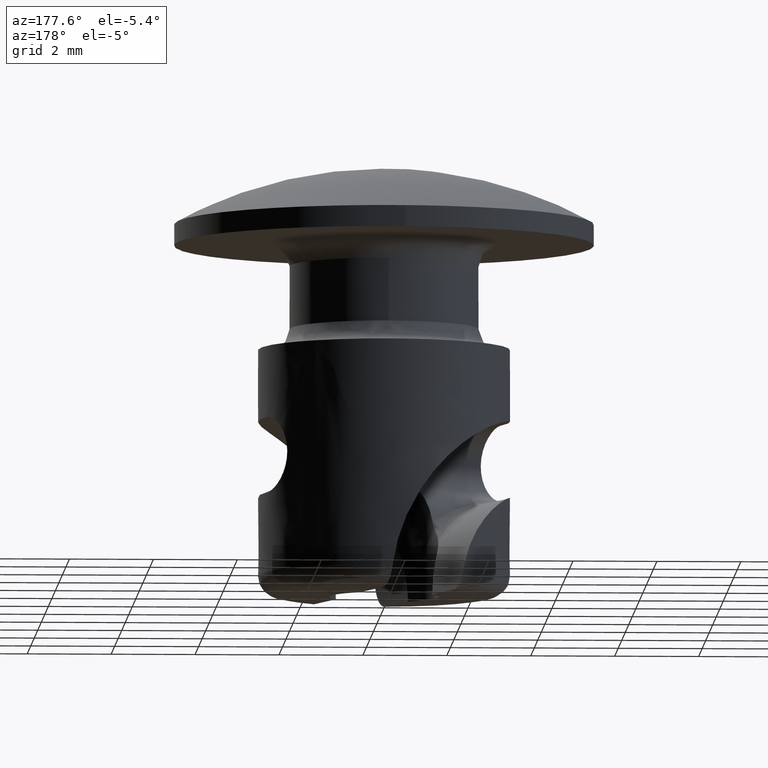
[diagram: clean part render]
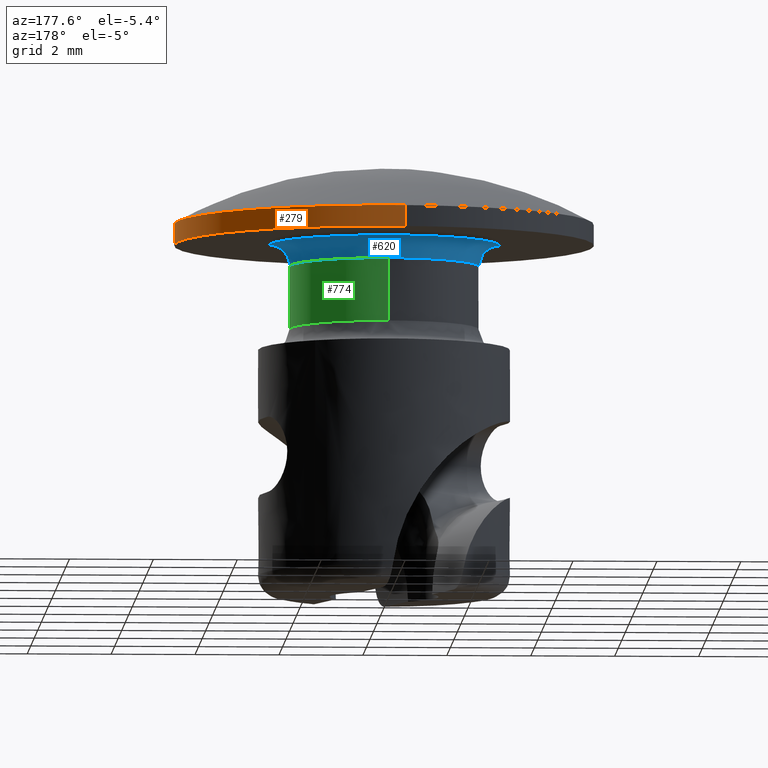
[diagram: same view with three faces highlighted in distinct colors, each labeled with its STEP entity id]
A machine part, auxiliary view with three faces highlighted in distinct colors.
Their STEP definitions:

[orange] entity #279 — the highlighted face is a freeform B-spline surface patch.
#140=CARTESIAN_POINT('',(0.305240933789139,-4.990674099992546,0.499999999999986));
#141=VERTEX_POINT('',#140);
#159=CARTESIAN_POINT('',(5.0,0.0,0.499999999999986));
#160=VERTEX_POINT('',#159);
#161=CARTESIAN_POINT('',(5.0,0.0,0.499999999999986));
#162=CARTESIAN_POINT('',(4.999999999999992,-4.703532000033230,0.499999999999986));
#163=CARTESIAN_POINT('',(0.305240933789139,-4.990674099992546,0.499999999999986));
#171=(BOUNDED_CURVE()B_SPLINE_CURVE(2,(#161,#162,#163),.UNSPECIFIED.,.F.,.U.)B_SPLINE_CURVE_WITH_KNOTS((3,3),(0.500000000000000,0.739333023226263),.UNSPECIFIED.)CURVE()GEOMETRIC_REPRESENTATION_ITEM()RATIONAL_B_SPLINE_CURVE((1.0,0.719603921835620,0.976072172374189))REPRESENTATION_ITEM(''));
#172=EDGE_CURVE('',#160,#141,#171,.T.);
#174=CARTESIAN_POINT('',(-0.305240933789139,4.990674099992546,0.499999999999986));
#175=VERTEX_POINT('',#174);
#176=CARTESIAN_POINT('',(-0.305240933789139,4.990674099992546,0.499999999999986));
#177=CARTESIAN_POINT('',(-0.152762932077495,4.999999999999692,0.499999999999986));
#178=CARTESIAN_POINT('',(1.885290E-014,4.999999999999697,0.499999999999986));
#179=CARTESIAN_POINT('',(5.000000000000009,4.999999999999853,0.499999999999986));
#180=CARTESIAN_POINT('',(5.0,0.0,0.499999999999986));
#188=(BOUNDED_CURVE()B_SPLINE_CURVE(2,(#176,#177,#178,#179,#180),.UNSPECIFIED.,.F.,.U.)B_SPLINE_CURVE_WITH_KNOTS((3,2,3),(0.239333023226263,0.250000000000000,0.500000000000000),.UNSPECIFIED.)CURVE()GEOMETRIC_REPRESENTATION_ITEM()RATIONAL_B_SPLINE_CURVE((0.976072172374189,0.987502859350927,1.0,0.707106781186548,1.0))REPRESENTATION_ITEM(''));
#189=EDGE_CURVE('',#175,#160,#188,.T.);
#213=CARTESIAN_POINT('',(-0.305242697674285,4.990673992109334,0.512499999999986));
#214=CARTESIAN_POINT('',(4.685431294435048,5.295916689783620,0.512499999999986));
#215=CARTESIAN_POINT('',(4.990673992109334,0.305242697674285,0.512499999999986));
#216=CARTESIAN_POINT('',(5.295916689783620,-4.685431294435048,0.512499999999986));
#217=CARTESIAN_POINT('',(0.305242697674285,-4.990673992109334,0.512499999999986));
#218=CARTESIAN_POINT('',(-0.305242697674285,4.990673992109334,-0.012812500000000));
#219=CARTESIAN_POINT('',(4.685431294435048,5.295916689783620,-0.012812500000000));
#220=CARTESIAN_POINT('',(4.990673992109334,0.305242697674285,-0.012812500000000));
#221=CARTESIAN_POINT('',(5.295916689783620,-4.685431294435048,-0.012812500000000));
#222=CARTESIAN_POINT('',(0.305242697674285,-4.990673992109334,-0.012812500000000));
#230=(BOUNDED_SURFACE()B_SPLINE_SURFACE(2,1,((#213,#218),(#214,#219),(#215,#220),(#216,#221),(#217,#222)),.UNSPECIFIED.,.F.,.F.,.U.)B_SPLINE_SURFACE_WITH_KNOTS((3,2,3),(2,2),(0.0,8.284271247461899,16.568542494923800),(0.0,1.0),.UNSPECIFIED.)GEOMETRIC_REPRESENTATION_ITEM()RATIONAL_B_SPLINE_SURFACE(((1.0,1.0),(0.707106781186548,0.707106781186548),(1.0,1.0),(0.707106781186548,0.707106781186548),(1.0,1.0)))REPRESENTATION_ITEM('')SURFACE());
#231=CARTESIAN_POINT('',(-0.305240911770624,4.990674101339240,3.206897E-014));
#232=VERTEX_POINT('',#231);
#233=CARTESIAN_POINT('',(5.0,0.0,0.0));
#234=VERTEX_POINT('',#233);
#235=CARTESIAN_POINT('',(-0.305240911770624,4.990674101339240,3.206897E-014));
#236=CARTESIAN_POINT('',(-0.152762921037370,4.999999999999686,3.160812E-014));
#237=CARTESIAN_POINT('',(1.852971E-014,4.999999999999690,3.111822E-014));
#238=CARTESIAN_POINT('',(5.000000000000009,4.999999999999851,1.508374E-014));
#239=CARTESIAN_POINT('',(5.0,0.0,0.0));
#247=(BOUNDED_CURVE()B_SPLINE_CURVE(2,(#235,#236,#237,#238,#239),.UNSPECIFIED.,.F.,.U.)B_SPLINE_CURVE_WITH_KNOTS((3,2,3),(0.239333023987528,0.250000000000000,0.500000000000000),.UNSPECIFIED.)CURVE()GEOMETRIC_REPRESENTATION_ITEM()RATIONAL_B_SPLINE_CURVE((0.976072174005725,0.987502860242805,1.0,0.707106781186548,1.0))REPRESENTATION_ITEM(''));
#248=EDGE_CURVE('',#232,#234,#247,.T.);
#249=ORIENTED_EDGE('',*,*,#248,.F.);
#250=CARTESIAN_POINT('',(-0.305240933789139,4.990674099992546,0.499999999999986));
#251=CARTESIAN_POINT('',(-0.305240911770624,4.990674101339240,3.206897E-014));
#252=QUASI_UNIFORM_CURVE('',1,(#250,#251),.UNSPECIFIED.,.F.,.U.);
#253=EDGE_CURVE('',#175,#232,#252,.T.);
#254=ORIENTED_EDGE('',*,*,#253,.F.);
#255=ORIENTED_EDGE('',*,*,#189,.T.);
#256=ORIENTED_EDGE('',*,*,#172,.T.);
#257=CARTESIAN_POINT('',(0.305240911770624,-4.990674101339240,3.206897E-014));
#258=VERTEX_POINT('',#257);
#259=CARTESIAN_POINT('',(0.305240933789139,-4.990674099992546,0.499999999999986));
#260=CARTESIAN_POINT('',(0.305240911770624,-4.990674101339240,3.206897E-014));
#261=QUASI_UNIFORM_CURVE('',1,(#259,#260),.UNSPECIFIED.,.F.,.U.);
#262=EDGE_CURVE('',#141,#258,#261,.T.);
#263=ORIENTED_EDGE('',*,*,#262,.T.);
#264=CARTESIAN_POINT('',(5.0,0.0,0.0));
#265=CARTESIAN_POINT('',(4.999999999999989,-4.703532020823662,1.603448E-014));
#266=CARTESIAN_POINT('',(0.305240911770624,-4.990674101339240,3.206897E-014));
#274=(BOUNDED_CURVE()B_SPLINE_CURVE(2,(#264,#265,#266),.UNSPECIFIED.,.F.,.U.)B_SPLINE_CURVE_WITH_KNOTS((3,3),(0.500000000000000,0.739333023987528),.UNSPECIFIED.)CURVE()GEOMETRIC_REPRESENTATION_ITEM()RATIONAL_B_SPLINE_CURVE((1.0,0.719603920943743,0.976072174005725))REPRESENTATION_ITEM(''));
#275=EDGE_CURVE('',#234,#258,#274,.T.);
#276=ORIENTED_EDGE('',*,*,#275,.F.);
#277=EDGE_LOOP('',(#249,#254,#255,#256,#263,#276));
#278=FACE_OUTER_BOUND('',#277,.T.);
#279=ADVANCED_FACE('',(#278),#230,.T.);

[blue] entity #620 — the highlighted face is a freeform B-spline surface patch.
#346=CARTESIAN_POINT('',(-2.750000000000000,0.0,5.496905E-014));
#347=VERTEX_POINT('',#346);
#348=CARTESIAN_POINT('',(-2.749782871351383,-0.034556609716116,5.452264E-014));
#349=VERTEX_POINT('',#348);
#350=CARTESIAN_POINT('',(-2.750000000000000,0.0,5.496905E-014));
#351=CARTESIAN_POINT('',(-2.749999999895693,-0.017278986996147,5.474583E-014));
#352=CARTESIAN_POINT('',(-2.749782871351383,-0.034556609716116,5.452264E-014));
#360=(BOUNDED_CURVE()B_SPLINE_CURVE(2,(#350,#351,#352),.UNSPECIFIED.,.F.,.U.)B_SPLINE_CURVE_WITH_KNOTS((3,3),(0.0,0.002215704080799),.UNSPECIFIED.)CURVE()GEOMETRIC_REPRESENTATION_ITEM()RATIONAL_B_SPLINE_CURVE((1.0,0.997404141199346,0.994854295638195))REPRESENTATION_ITEM(''));
#361=EDGE_CURVE('',#347,#349,#360,.T.);
#395=CARTESIAN_POINT('',(2.749782871351383,0.034556609716116,2.739134E-014));
#396=VERTEX_POINT('',#395);
#410=CARTESIAN_POINT('',(2.749782871351383,0.034556609716116,2.739134E-014));
#411=CARTESIAN_POINT('',(2.748236250449938,0.157790460235091,2.739521E-014));
#412=CARTESIAN_POINT('',(2.725865798738335,0.437635688325371,2.749856E-014));
#413=CARTESIAN_POINT('',(2.628674109826503,0.847979279634265,2.797297E-014));
#414=CARTESIAN_POINT('',(2.473175525276432,1.221431415602067,2.874089E-014));
#415=CARTESIAN_POINT('',(2.269282140503147,1.570246757333329,2.975225E-014));
#416=CARTESIAN_POINT('',(2.031080845913218,1.869314738794473,3.093720E-014));
#417=CARTESIAN_POINT('',(1.743142955307315,2.136723572665746,3.237253E-014));
#418=CARTESIAN_POINT('',(1.464469972253523,2.335726663549650,3.376356E-014));
#419=CARTESIAN_POINT('',(1.203165856542957,2.477764409657906,3.506930E-014));
#420=CARTESIAN_POINT('',(0.929490274111744,2.593513237947130,3.643790E-014));
#421=CARTESIAN_POINT('',(0.655664289719096,2.677087208554339,3.780827E-014));
#422=CARTESIAN_POINT('',(0.335566822399127,2.735372369005177,3.941144E-014));
#423=CARTESIAN_POINT('',(0.044373066648671,2.754925473139783,4.087091E-014));
#424=CARTESIAN_POINT('',(-0.280627498258958,2.741954632945511,4.250091E-014));
#425=CARTESIAN_POINT('',(-0.607941997727665,2.690476047972071,4.414373E-014));
#426=CARTESIAN_POINT('',(-0.919894667448823,2.597222137012148,4.571084E-014));
#427=CARTESIAN_POINT('',(-1.204259042195668,2.477862061131468,4.714044E-014));
#428=CARTESIAN_POINT('',(-1.494660844532349,2.318730212542890,4.860157E-014));
#429=CARTESIAN_POINT('',(-1.765292613343123,2.117732923009455,4.996488E-014));
#430=CARTESIAN_POINT('',(-2.004877617933788,1.889532017418787,5.117338E-014));
#431=CARTESIAN_POINT('',(-2.234222197280339,1.620488367966624,5.233182E-014));
#432=CARTESIAN_POINT('',(-2.463969732953945,1.253396567435471,5.349537E-014));
#433=CARTESIAN_POINT('',(-2.629566740836594,0.841100131567430,5.433868E-014));
#434=CARTESIAN_POINT('',(-2.727756896630178,0.420150666602375,5.484428E-014));
#435=CARTESIAN_POINT('',(-2.750011530874369,0.151255125909177,5.496434E-014));
#436=CARTESIAN_POINT('',(-2.750000000000000,0.0,5.496905E-014));
#437=B_SPLINE_CURVE_WITH_KNOTS('',3,(#410,#411,#412,#413,#414,#415,#416,#417,#418,#419,#420,#421,#422,#423,#424,#425,#426,#427,#428,#429,#430,#431,#432,#433,#434,#435,#436),.UNSPECIFIED.,.F.,.U.,(4,1,1,1,1,1,1,1,1,1,1,1,1,1,1,1,1,1,1,1,1,1,1,1,4),(0.000000011273759,0.369732021741813,0.840310488369473,1.260473818879522,1.579794184108602,2.050370947915833,2.403304421040791,2.756239410470049,3.075560726114391,3.294043798321678,3.646975427920793,3.932685633348961,4.268809381572256,4.520892844356641,4.907439471111950,5.260373010466616,5.495665032823286,5.831790484703065,6.251950940158814,6.504045928768614,6.823366226900075,7.310752889384222,7.798136203134633,8.151071502686738,8.604835668678742),.UNSPECIFIED.);
#438=EDGE_CURVE('',#396,#347,#437,.T.);
#466=CARTESIAN_POINT('',(2.249822349458503,0.028273589744125,-0.499999999954499));
#467=VERTEX_POINT('',#466);
#483=CARTESIAN_POINT('',(2.249822349458504,0.028273589744125,-0.499999999954499));
#484=CARTESIAN_POINT('',(2.249822349503739,0.028273589761165,-2.085893E-010));
#485=CARTESIAN_POINT('',(2.749782871351383,0.034556609716116,2.739134E-014));
#493=(BOUNDED_CURVE()B_SPLINE_CURVE(2,(#483,#484,#485),.UNSPECIFIED.,.F.,.U.)B_SPLINE_CURVE_WITH_KNOTS((3,3),(-1.725134643188606,-0.274865357146085),.UNSPECIFIED.)CURVE()GEOMETRIC_REPRESENTATION_ITEM()RATIONAL_B_SPLINE_CURVE((0.883342149619803,0.624617224220545,0.883342149500387))REPRESENTATION_ITEM(''));
#494=EDGE_CURVE('',#467,#396,#493,.T.);
#498=CARTESIAN_POINT('',(-2.249822349458503,-0.028273589744126,-0.499999999954499));
#499=VERTEX_POINT('',#498);
#500=CARTESIAN_POINT('',(-2.249822349458503,-0.028273589744126,-0.499999999954499));
#501=CARTESIAN_POINT('',(-2.249822349503737,-0.028273589761165,-2.085756E-010));
#502=CARTESIAN_POINT('',(-2.749782871351383,-0.034556609716116,5.452264E-014));
#510=(BOUNDED_CURVE()B_SPLINE_CURVE(2,(#500,#501,#502),.UNSPECIFIED.,.F.,.U.)B_SPLINE_CURVE_WITH_KNOTS((3,3),(-1.725134643188606,-0.274865357146084),.UNSPECIFIED.)CURVE()GEOMETRIC_REPRESENTATION_ITEM()RATIONAL_B_SPLINE_CURVE((0.883342149619803,0.624617224220545,0.883342149500387))REPRESENTATION_ITEM(''));
#511=EDGE_CURVE('',#499,#349,#510,.T.);
#546=CARTESIAN_POINT('',(-2.251032571150834,-0.028288798632426,-0.534768554556568));
#547=CARTESIAN_POINT('',(-2.279321369783262,2.222743772518409,-0.534768554556568));
#548=CARTESIAN_POINT('',(-0.028288798632427,2.251032571150834,-0.534768554556568));
#549=CARTESIAN_POINT('',(2.222743772518409,2.279321369783262,-0.534768554556568));
#550=CARTESIAN_POINT('',(2.251032571150834,0.028288798632427,-0.534768554556568));
#551=CARTESIAN_POINT('',(-2.211056838643848,-0.027786422317855,0.038768587008932));
#552=CARTESIAN_POINT('',(-2.238843260961703,2.183270416325992,0.038768587008932));
#553=CARTESIAN_POINT('',(-0.027786422317856,2.211056838643848,0.038768587008932));
#554=CARTESIAN_POINT('',(2.183270416325992,2.238843260961703,0.038768587008932));
#555=CARTESIAN_POINT('',(2.211056838643848,0.027786422317856,0.038768587008932));
#556=CARTESIAN_POINT('',(-2.784548695000571,-0.034993512899187,-0.001210318234063));
#557=CARTESIAN_POINT('',(-2.819542207899759,2.749555182101385,-0.001210318234063));
#558=CARTESIAN_POINT('',(-0.034993512899187,2.784548695000571,-0.001210318234063));
#559=CARTESIAN_POINT('',(2.749555182101385,2.819542207899759,-0.001210318234063));
#560=CARTESIAN_POINT('',(2.784548695000571,0.034993512899187,-0.001210318234063));
#568=(BOUNDED_SURFACE()B_SPLINE_SURFACE(2,2,((#546,#551,#556),(#547,#552,#557),(#548,#553,#558),(#549,#554,#559),(#550,#555,#560)),.UNSPECIFIED.,.F.,.F.,.U.)B_SPLINE_SURFACE_WITH_KNOTS((3,2,3),(3,3),(0.0,4.613955636771016,9.227911273542032),(0.0,0.911186972831271),.UNSPECIFIED.)GEOMETRIC_REPRESENTATION_ITEM()RATIONAL_B_SPLINE_SURFACE(((0.910479795090997,0.597479572841838,0.910479806786608),(0.643806437242182,0.422481857576905,0.643806445512228),(0.910479795090997,0.597479572841838,0.910479806786608),(0.643806437242182,0.422481857576905,0.643806445512228),(0.910479795090997,0.597479572841838,0.910479806786608)))REPRESENTATION_ITEM('')SURFACE());
#569=CARTESIAN_POINT('',(-2.250000000000000,0.0,-0.499999999999945));
#570=VERTEX_POINT('',#569);
#571=CARTESIAN_POINT('',(-0.019633587222251,2.249914336647406,-0.499999999977278));
#572=VERTEX_POINT('',#571);
#573=CARTESIAN_POINT('',(-2.250000000000000,0.0,-0.499999999999945));
#574=CARTESIAN_POINT('',(-2.249999999999999,2.230451331861282,-0.499999999999803));
#575=CARTESIAN_POINT('',(-0.019633587222251,2.249914336647405,-0.499999999977278));
#583=(BOUNDED_CURVE()B_SPLINE_CURVE(2,(#573,#574,#575),.UNSPECIFIED.,.F.,.U.)B_SPLINE_CURVE_WITH_KNOTS((3,3),(0.0,0.248460193164272),.UNSPECIFIED.)CURVE()GEOMETRIC_REPRESENTATION_ITEM()RATIONAL_B_SPLINE_CURVE((1.0,0.708910777108417,0.996414230598277))REPRESENTATION_ITEM(''));
#584=EDGE_CURVE('',#570,#572,#583,.T.);
#585=ORIENTED_EDGE('',*,*,#584,.F.);
#586=CARTESIAN_POINT('',(-2.249822349458504,-0.028273589744126,-0.499999999954499));
#587=CARTESIAN_POINT('',(-2.250000000000000,-0.014137352985044,-0.499999999977222));
#588=CARTESIAN_POINT('',(-2.250000000000000,0.0,-0.499999999999945));
#596=(BOUNDED_CURVE()B_SPLINE_CURVE(2,(#586,#587,#588),.UNSPECIFIED.,.F.,.U.)B_SPLINE_CURVE_WITH_KNOTS((3,3),(0.997784295921214,1.0),.UNSPECIFIED.)CURVE()GEOMETRIC_REPRESENTATION_ITEM()RATIONAL_B_SPLINE_CURVE((0.994854295642828,0.997404141201705,1.0))REPRESENTATION_ITEM(''));
#597=EDGE_CURVE('',#499,#570,#596,.T.);
#598=ORIENTED_EDGE('',*,*,#597,.F.);
#599=ORIENTED_EDGE('',*,*,#511,.T.);
#600=ORIENTED_EDGE('',*,*,#361,.F.);
#601=ORIENTED_EDGE('',*,*,#438,.F.);
#602=ORIENTED_EDGE('',*,*,#494,.F.);
#603=CARTESIAN_POINT('',(-0.019633587222251,2.249914336647405,-0.499999999977278));
#604=CARTESIAN_POINT('',(-0.009816980490115,2.249999999999722,-0.499999999977179));
#605=CARTESIAN_POINT('',(2.453554E-015,2.249999999999723,-0.499999999977080));
#606=CARTESIAN_POINT('',(2.221901842284958,2.249999999999862,-0.499999999954640));
#607=CARTESIAN_POINT('',(2.249822349458504,0.028273589744125,-0.499999999954499));
#615=(BOUNDED_CURVE()B_SPLINE_CURVE(2,(#603,#604,#605,#606,#607),.UNSPECIFIED.,.F.,.U.)B_SPLINE_CURVE_WITH_KNOTS((3,2,3),(0.248460193164272,0.250000000000000,0.497784295921214),.UNSPECIFIED.)CURVE()GEOMETRIC_REPRESENTATION_ITEM()RATIONAL_B_SPLINE_CURVE((0.996414230598277,0.998196004078130,1.0,0.709702639984843,0.994854295642828))REPRESENTATION_ITEM(''));
#616=EDGE_CURVE('',#572,#467,#615,.T.);
#617=ORIENTED_EDGE('',*,*,#616,.F.);
#618=EDGE_LOOP('',(#585,#598,#599,#600,#601,#602,#617));
#619=FACE_OUTER_BOUND('',#618,.T.);
#620=ADVANCED_FACE('',(#619),#568,.F.);

[green] entity #774 — the highlighted face is a freeform B-spline surface patch.
#466=CARTESIAN_POINT('',(2.249822349458503,0.028273589744125,-0.499999999954499));
#467=VERTEX_POINT('',#466);
#468=CARTESIAN_POINT('',(2.250000000000000,0.0,-0.499999999999945));
#469=VERTEX_POINT('',#468);
#470=CARTESIAN_POINT('',(2.249822349458504,0.028273589744125,-0.499999999954499));
#471=CARTESIAN_POINT('',(2.250000000000000,0.014137352985043,-0.499999999977222));
#472=CARTESIAN_POINT('',(2.250000000000000,0.0,-0.499999999999945));
#480=(BOUNDED_CURVE()B_SPLINE_CURVE(2,(#470,#471,#472),.UNSPECIFIED.,.F.,.U.)B_SPLINE_CURVE_WITH_KNOTS((3,3),(0.497784295921214,0.500000000000000),.UNSPECIFIED.)CURVE()GEOMETRIC_REPRESENTATION_ITEM()RATIONAL_B_SPLINE_CURVE((0.994854295642828,0.997404141201705,1.0))REPRESENTATION_ITEM(''));
#481=EDGE_CURVE('',#467,#469,#480,.T.);
#513=CARTESIAN_POINT('',(0.019633587222252,-2.249914336647406,-0.499999999977278));
#514=VERTEX_POINT('',#513);
#530=CARTESIAN_POINT('',(2.250000000000000,0.0,-0.499999999999945));
#531=CARTESIAN_POINT('',(2.249999999999999,-2.230451331861282,-0.499999999999803));
#532=CARTESIAN_POINT('',(0.019633587222252,-2.249914336647405,-0.499999999977278));
#540=(BOUNDED_CURVE()B_SPLINE_CURVE(2,(#530,#531,#532),.UNSPECIFIED.,.F.,.U.)B_SPLINE_CURVE_WITH_KNOTS((3,3),(0.500000000000000,0.748460193164272),.UNSPECIFIED.)CURVE()GEOMETRIC_REPRESENTATION_ITEM()RATIONAL_B_SPLINE_CURVE((1.0,0.708910777108417,0.996414230598277))REPRESENTATION_ITEM(''));
#541=EDGE_CURVE('',#469,#514,#540,.T.);
#571=CARTESIAN_POINT('',(-0.019633587222251,2.249914336647406,-0.499999999977278));
#572=VERTEX_POINT('',#571);
#603=CARTESIAN_POINT('',(-0.019633587222251,2.249914336647405,-0.499999999977278));
#604=CARTESIAN_POINT('',(-0.009816980490115,2.249999999999722,-0.499999999977179));
#605=CARTESIAN_POINT('',(2.453554E-015,2.249999999999723,-0.499999999977080));
#606=CARTESIAN_POINT('',(2.221901842284958,2.249999999999862,-0.499999999954640));
#607=CARTESIAN_POINT('',(2.249822349458504,0.028273589744125,-0.499999999954499));
#615=(BOUNDED_CURVE()B_SPLINE_CURVE(2,(#603,#604,#605,#606,#607),.UNSPECIFIED.,.F.,.U.)B_SPLINE_CURVE_WITH_KNOTS((3,2,3),(0.248460193164272,0.250000000000000,0.497784295921214),.UNSPECIFIED.)CURVE()GEOMETRIC_REPRESENTATION_ITEM()RATIONAL_B_SPLINE_CURVE((0.996414230598277,0.998196004078130,1.0,0.709702639984843,0.994854295642828))REPRESENTATION_ITEM(''));
#616=EDGE_CURVE('',#572,#467,#615,.T.);
#639=CARTESIAN_POINT('',(-0.019633703514264,2.249914335632650,-2.000000000023821));
#640=VERTEX_POINT('',#639);
#671=CARTESIAN_POINT('',(0.019633703514264,-2.249914335632650,-2.000000000023821));
#672=VERTEX_POINT('',#671);
#688=CARTESIAN_POINT('',(0.019633703514264,-2.249914335632650,-2.000000000023821));
#689=CARTESIAN_POINT('',(0.019633587222252,-2.249914336647406,-0.499999999977278));
#690=QUASI_UNIFORM_CURVE('',1,(#688,#689),.UNSPECIFIED.,.F.,.U.);
#691=EDGE_CURVE('',#672,#514,#690,.T.);
#696=CARTESIAN_POINT('',(-0.019633703514264,2.249914335632650,-2.000000000023821));
#697=CARTESIAN_POINT('',(-0.019633587222251,2.249914336647406,-0.499999999977278));
#698=QUASI_UNIFORM_CURVE('',1,(#696,#697),.UNSPECIFIED.,.F.,.U.);
#699=EDGE_CURVE('',#640,#572,#698,.T.);
#704=CARTESIAN_POINT('',(0.019634704871341,-2.249914326894384,-2.037500000049261));
#705=CARTESIAN_POINT('',(2.269549031765726,-2.230279622023043,-2.037500000049260));
#706=CARTESIAN_POINT('',(2.249914326894384,0.019634704871341,-2.037500000049261));
#707=CARTESIAN_POINT('',(2.230279622023043,2.269549031765726,-2.037500000049260));
#708=CARTESIAN_POINT('',(-0.019634704871341,2.249914326894384,-2.037500000049261));
#709=CARTESIAN_POINT('',(0.019634704871341,-2.249914326894384,-0.461562499952130));
#710=CARTESIAN_POINT('',(2.269549031765726,-2.230279622023043,-0.461562499952130));
#711=CARTESIAN_POINT('',(2.249914326894384,0.019634704871341,-0.461562499952130));
#712=CARTESIAN_POINT('',(2.230279622023043,2.269549031765726,-0.461562499952130));
#713=CARTESIAN_POINT('',(-0.019634704871341,2.249914326894384,-0.461562499952130));
#721=(BOUNDED_SURFACE()B_SPLINE_SURFACE(2,1,((#704,#709),(#705,#710),(#706,#711),(#707,#712),(#708,#713)),.UNSPECIFIED.,.F.,.F.,.U.)B_SPLINE_SURFACE_WITH_KNOTS((3,2,3),(2,2),(0.0,3.727922061357854,7.455844122715709),(0.0,1.0),.UNSPECIFIED.)GEOMETRIC_REPRESENTATION_ITEM()RATIONAL_B_SPLINE_SURFACE(((1.0,1.0),(0.707106781186548,0.707106781186548),(1.0,1.0),(0.707106781186548,0.707106781186548),(1.0,1.0)))REPRESENTATION_ITEM('')SURFACE());
#722=CARTESIAN_POINT('',(2.250000000000000,0.0,-2.0));
#723=VERTEX_POINT('',#722);
#724=CARTESIAN_POINT('',(2.250000000000000,0.0,-2.0));
#725=CARTESIAN_POINT('',(2.250000000000000,2.249999999999890,-2.000000000000144));
#726=CARTESIAN_POINT('',(1.684640E-015,2.249999999999778,-2.000000000023616));
#727=CARTESIAN_POINT('',(-0.009817038639443,2.249999999999777,-2.000000000023718));
#728=CARTESIAN_POINT('',(-0.019633703514264,2.249914335632651,-2.000000000023821));
#736=(BOUNDED_CURVE()B_SPLINE_CURVE(2,(#724,#725,#726,#727,#728),.UNSPECIFIED.,.F.,.U.)B_SPLINE_CURVE_WITH_KNOTS((3,2,3),(0.0,0.250000000000000,0.251539815940076),.UNSPECIFIED.)CURVE()GEOMETRIC_REPRESENTATION_ITEM()RATIONAL_B_SPLINE_CURVE((1.0,0.707106781186547,1.0,0.998195993411724,0.996414209528252))REPRESENTATION_ITEM(''));
#737=EDGE_CURVE('',#723,#640,#736,.T.);
#738=ORIENTED_EDGE('',*,*,#737,.T.);
#739=ORIENTED_EDGE('',*,*,#699,.T.);
#740=ORIENTED_EDGE('',*,*,#616,.T.);
#741=ORIENTED_EDGE('',*,*,#481,.T.);
#742=ORIENTED_EDGE('',*,*,#541,.T.);
#743=ORIENTED_EDGE('',*,*,#691,.F.);
#744=CARTESIAN_POINT('',(2.249822349458503,-0.028273589744125,-2.000000000046950));
#745=VERTEX_POINT('',#744);
#746=CARTESIAN_POINT('',(0.019633703514264,-2.249914335632650,-2.000000000023821));
#747=CARTESIAN_POINT('',(2.222144457689762,-2.230694295807422,-2.000000000046802));
#748=CARTESIAN_POINT('',(2.249822349458504,-0.028273589744125,-2.000000000046950));
#756=(BOUNDED_CURVE()B_SPLINE_CURVE(2,(#746,#747,#748),.UNSPECIFIED.,.F.,.U.)B_SPLINE_CURVE_WITH_KNOTS((3,3),(0.751539815940076,0.997784295921214),.UNSPECIFIED.)CURVE()GEOMETRIC_REPRESENTATION_ITEM()RATIONAL_B_SPLINE_CURVE((0.996414209528252,0.711474669415073,0.994854295642828))REPRESENTATION_ITEM(''));
#757=EDGE_CURVE('',#672,#745,#756,.T.);
#758=ORIENTED_EDGE('',*,*,#757,.T.);
#759=CARTESIAN_POINT('',(2.249822349458504,-0.028273589744125,-2.000000000046950));
#760=CARTESIAN_POINT('',(2.250000000000000,-0.014137352985043,-2.000000000023475));
#761=CARTESIAN_POINT('',(2.250000000000000,0.0,-2.0));
#769=(BOUNDED_CURVE()B_SPLINE_CURVE(2,(#759,#760,#761),.UNSPECIFIED.,.F.,.U.)B_SPLINE_CURVE_WITH_KNOTS((3,3),(0.997784295921214,1.0),.UNSPECIFIED.)CURVE()GEOMETRIC_REPRESENTATION_ITEM()RATIONAL_B_SPLINE_CURVE((0.994854295642828,0.997404141201705,1.0))REPRESENTATION_ITEM(''));
#770=EDGE_CURVE('',#745,#723,#769,.T.);
#771=ORIENTED_EDGE('',*,*,#770,.T.);
#772=EDGE_LOOP('',(#738,#739,#740,#741,#742,#743,#758,#771));
#773=FACE_OUTER_BOUND('',#772,.T.);
#774=ADVANCED_FACE('',(#773),#721,.T.);